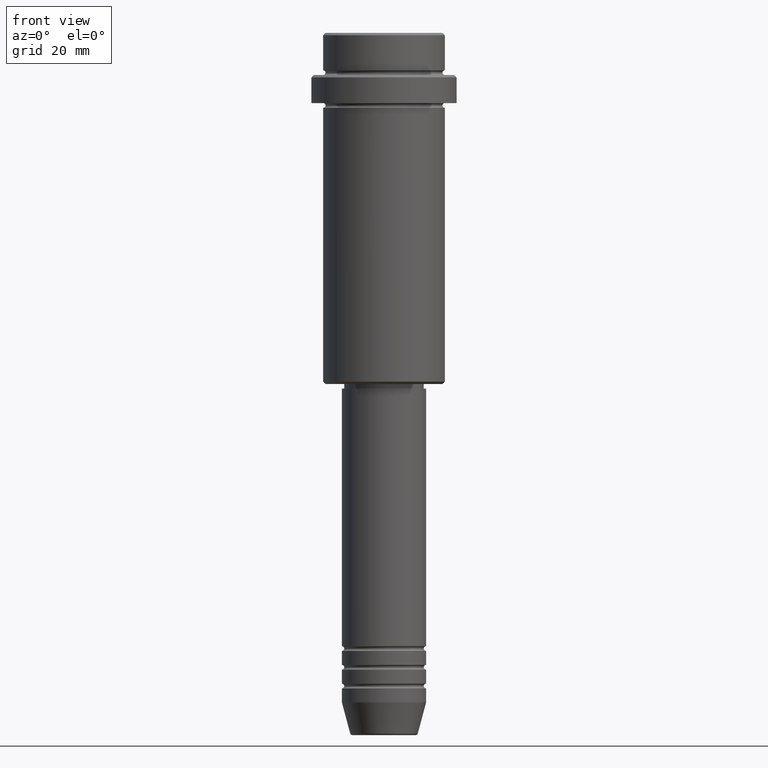
[diagram: clean part render]
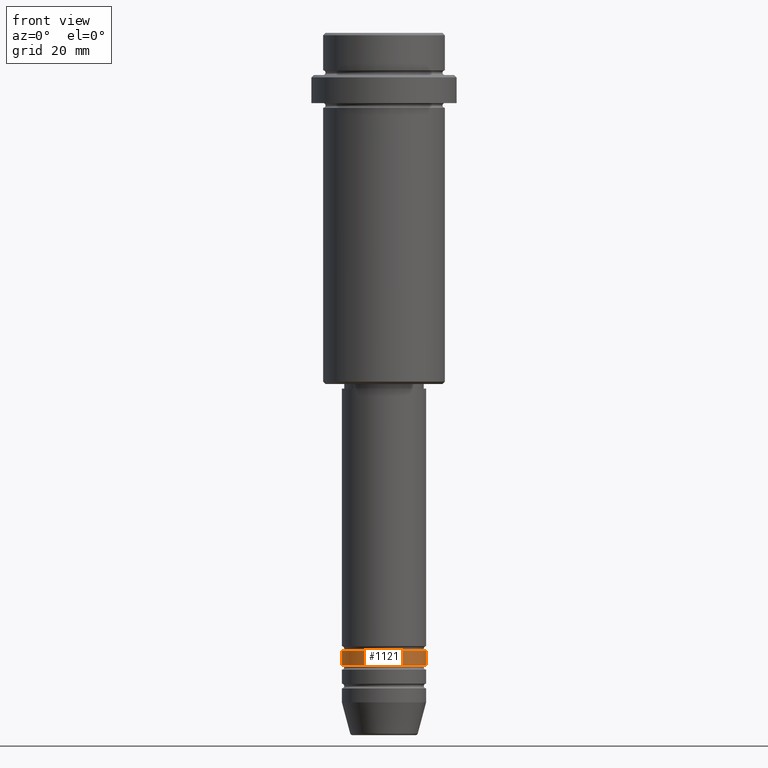
[diagram: same view with one face highlighted and labeled with its STEP entity id]
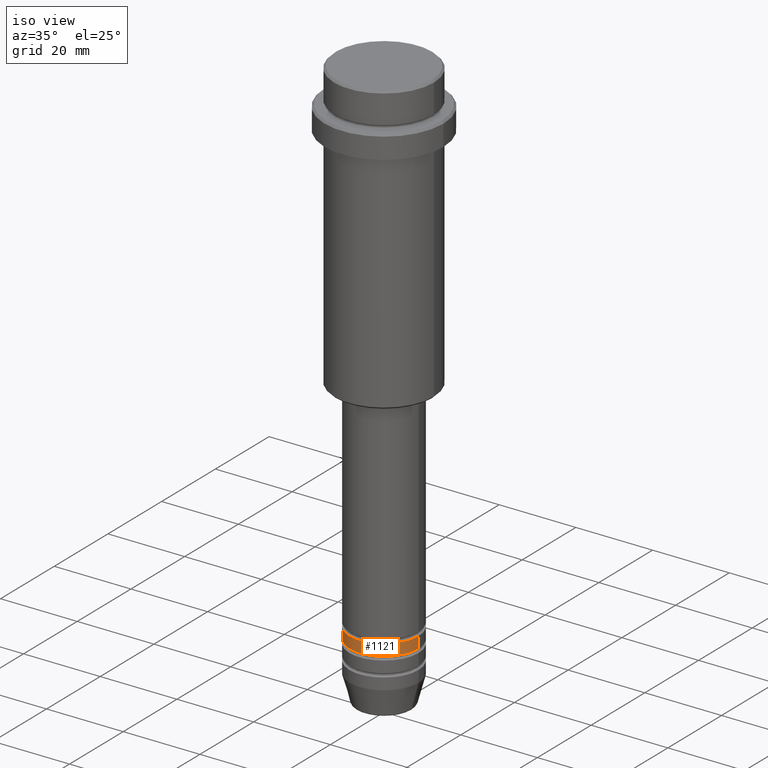
[diagram: same view with one face highlighted and labeled with its STEP entity id]
A machine part, front view. The second image highlights one B-rep face of the part: STEP entity #1121.
A second angle (iso view) of the same face is appended — the face is thin or edge-on in the first view.
In plain terms, the highlighted cylindrical surface (partial cylindrical patch) has radius 9 mm, axis along (-0, -0, 1).
Its self-contained STEP definition (entity closure, byte-faithful):
#47 = EDGE_CURVE ( 'NONE', #756, #617, #70, .T. ) ;
#48 = AXIS2_PLACEMENT_3D ( 'NONE', #313, #1294, #1387 ) ;
#54 = DIRECTION ( 'NONE',  ( -0.000000000000000000, -0.000000000000000000, 1.000000000000000000 ) ) ;
#70 = CIRCLE ( 'NONE', #710, 9.000000000000000000 ) ;
#104 = ORIENTED_EDGE ( 'NONE', *, *, #1134, .T. ) ;
#264 = FACE_OUTER_BOUND ( 'NONE', #709, .T. ) ;
#308 = CIRCLE ( 'NONE', #48, 9.000000000000000000 ) ;
#313 = CARTESIAN_POINT ( 'NONE',  ( 0.000000000000000000, 0.000000000000000000, -131.9999999999998863 ) ) ;
#447 = VERTEX_POINT ( 'NONE', #1227 ) ;
#458 = DIRECTION ( 'NONE',  ( -0.000000000000000000, -0.000000000000000000, 1.000000000000000000 ) ) ;
#467 = CARTESIAN_POINT ( 'NONE',  ( -9.000000000000000000, 1.102182119232617714E-15, 0.000000000000000000 ) ) ;
#556 = AXIS2_PLACEMENT_3D ( 'NONE', #1160, #610, #1347 ) ;
#610 = DIRECTION ( 'NONE',  ( -0.000000000000000000, -0.000000000000000000, 1.000000000000000000 ) ) ;
#617 = VERTEX_POINT ( 'NONE', #1035 ) ;
#621 = CARTESIAN_POINT ( 'NONE',  ( -9.000000000000000000, 1.102182119232617714E-15, -134.9999999999998863 ) ) ;
#709 = EDGE_LOOP ( 'NONE', ( #1384, #956, #104, #1279 ) ) ;
#710 = AXIS2_PLACEMENT_3D ( 'NONE', #1322, #1115, #893 ) ;
#726 = CYLINDRICAL_SURFACE ( 'NONE', #556, 9.000000000000000000 ) ;
#756 = VERTEX_POINT ( 'NONE', #621 ) ;
#794 = CARTESIAN_POINT ( 'NONE',  ( -9.000000000000000000, 1.102182119232617714E-15, -131.9999999999998863 ) ) ;
#893 = DIRECTION ( 'NONE',  ( 1.000000000000000000, 0.000000000000000000, 0.000000000000000000 ) ) ;
#950 = LINE ( 'NONE', #1252, #1313 ) ;
#956 = ORIENTED_EDGE ( 'NONE', *, *, #47, .T. ) ;
#1011 = LINE ( 'NONE', #467, #1330 ) ;
#1035 = CARTESIAN_POINT ( 'NONE',  ( 9.000000000000000000, 0.000000000000000000, -134.9999999999998863 ) ) ;
#1115 = DIRECTION ( 'NONE',  ( -0.000000000000000000, -0.000000000000000000, 1.000000000000000000 ) ) ;
#1121 = ADVANCED_FACE ( 'NONE', ( #264 ), #726, .T. ) ;
#1134 = EDGE_CURVE ( 'NONE', #617, #447, #950, .T. ) ;
#1160 = CARTESIAN_POINT ( 'NONE',  ( 0.000000000000000000, 0.000000000000000000, 0.000000000000000000 ) ) ;
#1227 = CARTESIAN_POINT ( 'NONE',  ( 9.000000000000000000, 0.000000000000000000, -131.9999999999998863 ) ) ;
#1252 = CARTESIAN_POINT ( 'NONE',  ( 9.000000000000000000, 0.000000000000000000, 0.000000000000000000 ) ) ;
#1255 = EDGE_CURVE ( 'NONE', #1401, #447, #308, .T. ) ;
#1279 = ORIENTED_EDGE ( 'NONE', *, *, #1255, .F. ) ;
#1294 = DIRECTION ( 'NONE',  ( -0.000000000000000000, -0.000000000000000000, 1.000000000000000000 ) ) ;
#1313 = VECTOR ( 'NONE', #54, 1000.000000000000000 ) ;
#1322 = CARTESIAN_POINT ( 'NONE',  ( 0.000000000000000000, 0.000000000000000000, -134.9999999999998863 ) ) ;
#1330 = VECTOR ( 'NONE', #458, 1000.000000000000000 ) ;
#1347 = DIRECTION ( 'NONE',  ( 1.000000000000000000, 0.000000000000000000, 0.000000000000000000 ) ) ;
#1384 = ORIENTED_EDGE ( 'NONE', *, *, #1389, .F. ) ;
#1387 = DIRECTION ( 'NONE',  ( 1.000000000000000000, 0.000000000000000000, 0.000000000000000000 ) ) ;
#1389 = EDGE_CURVE ( 'NONE', #756, #1401, #1011, .T. ) ;
#1401 = VERTEX_POINT ( 'NONE', #794 ) ;